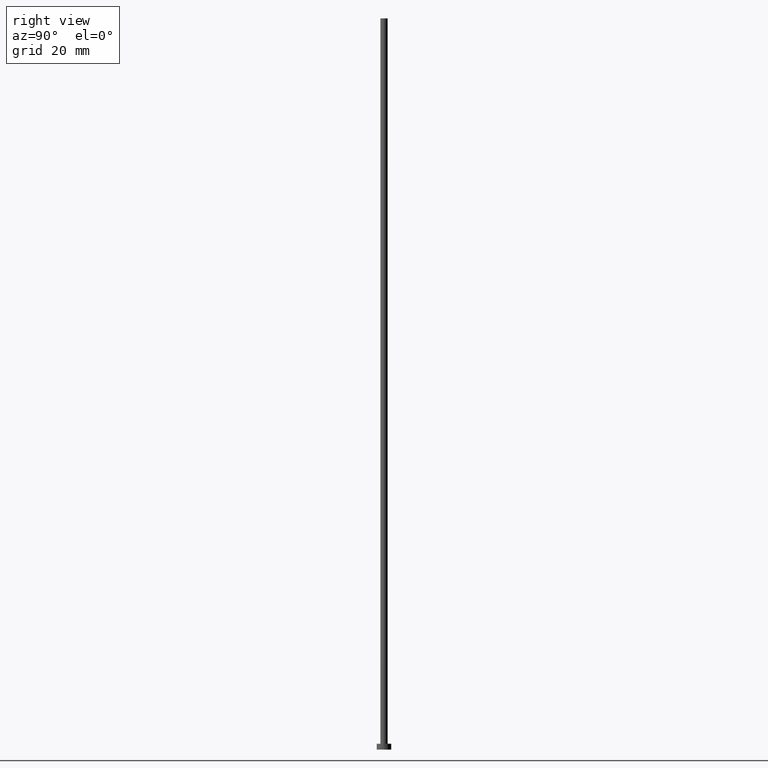
[diagram: clean part render]
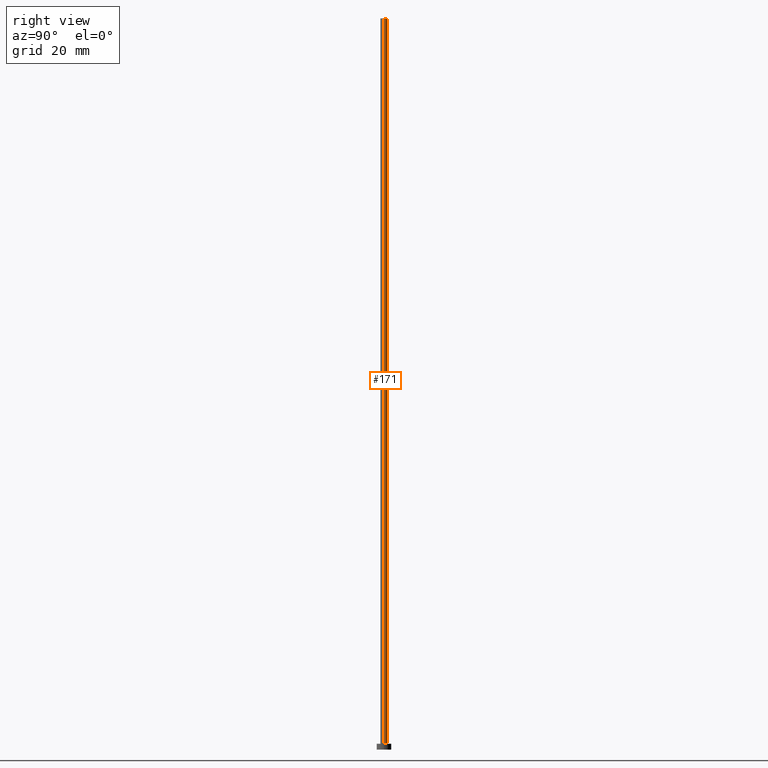
[diagram: same view with one face highlighted and labeled with its STEP entity id]
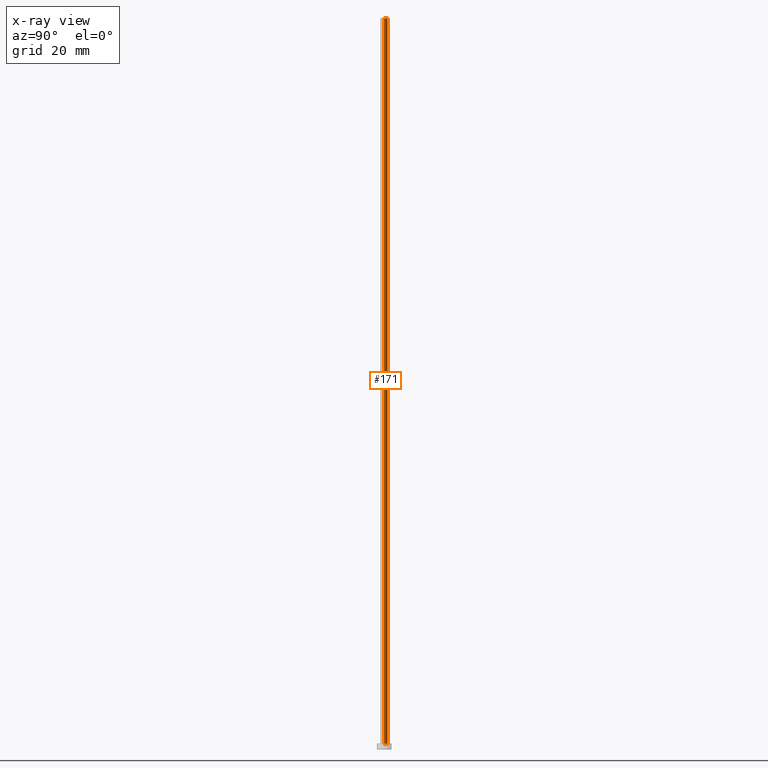
[diagram: x-ray of the same camera — body ghosted, the highlighted face saturated]
A machine part, right view. The second image highlights one B-rep face of the part: STEP entity #171.
The next image is the same camera in x-ray: the body ghosted, the highlighted face saturated — about 0% of this face is hidden behind the body in this view.
In plain terms, the highlighted cylindrical surface (edge-blend (fillet) strip) has radius 1.25 mm, axis along (-0, -0, -1).
Its self-contained STEP definition (entity closure, byte-faithful):
#5 = AXIS2_PLACEMENT_3D ( 'NONE', #182, #8, #162 ) ;
#8 = DIRECTION ( 'NONE',  ( 0.000000000000000000, 0.000000000000000000, 1.000000000000000000 ) ) ;
#9 = FACE_OUTER_BOUND ( 'NONE', #255, .T. ) ;
#16 = DIRECTION ( 'NONE',  ( -0.000000000000000000, -0.000000000000000000, -1.000000000000000000 ) ) ;
#18 = VERTEX_POINT ( 'NONE', #197 ) ;
#20 = AXIS2_PLACEMENT_3D ( 'NONE', #211, #72, #220 ) ;
#21 = CARTESIAN_POINT ( 'NONE',  ( 1.250000000000000000, 1.530808498934191571E-16, 250.0000000000000000 ) ) ;
#36 = VERTEX_POINT ( 'NONE', #21 ) ;
#40 = VERTEX_POINT ( 'NONE', #155 ) ;
#43 = ORIENTED_EDGE ( 'NONE', *, *, #51, .T. ) ;
#44 = LINE ( 'NONE', #65, #157 ) ;
#51 = EDGE_CURVE ( 'NONE', #36, #18, #113, .T. ) ;
#65 = CARTESIAN_POINT ( 'NONE',  ( -1.250000000000000000, 0.000000000000000000, 250.0000000000000000 ) ) ;
#72 = DIRECTION ( 'NONE',  ( -0.000000000000000000, -0.000000000000000000, -1.000000000000000000 ) ) ;
#76 = ORIENTED_EDGE ( 'NONE', *, *, #164, .F. ) ;
#77 = EDGE_CURVE ( 'NONE', #36, #40, #144, .T. ) ;
#82 = AXIS2_PLACEMENT_3D ( 'NONE', #247, #170, #248 ) ;
#103 = CARTESIAN_POINT ( 'NONE',  ( -1.250000000000000000, 0.000000000000000000, 2.000000000000000000 ) ) ;
#113 = LINE ( 'NONE', #236, #176 ) ;
#117 = ORIENTED_EDGE ( 'NONE', *, *, #77, .F. ) ;
#124 = ORIENTED_EDGE ( 'NONE', *, *, #224, .T. ) ;
#144 = CIRCLE ( 'NONE', #5, 1.250000000000000000 ) ;
#155 = CARTESIAN_POINT ( 'NONE',  ( -1.250000000000000000, 0.000000000000000000, 250.0000000000000000 ) ) ;
#157 = VECTOR ( 'NONE', #241, 1000.000000000000000 ) ;
#162 = DIRECTION ( 'NONE',  ( 1.000000000000000000, 0.000000000000000000, 0.000000000000000000 ) ) ;
#164 = EDGE_CURVE ( 'NONE', #40, #217, #44, .T. ) ;
#170 = DIRECTION ( 'NONE',  ( 0.000000000000000000, 0.000000000000000000, 1.000000000000000000 ) ) ;
#171 = ADVANCED_FACE ( 'NONE', ( #9 ), #244, .T. ) ;
#176 = VECTOR ( 'NONE', #16, 1000.000000000000000 ) ;
#182 = CARTESIAN_POINT ( 'NONE',  ( 0.000000000000000000, 0.000000000000000000, 250.0000000000000000 ) ) ;
#187 = CIRCLE ( 'NONE', #82, 1.250000000000000000 ) ;
#197 = CARTESIAN_POINT ( 'NONE',  ( 1.250000000000000000, 1.530808498934191571E-16, 2.000000000000000000 ) ) ;
#211 = CARTESIAN_POINT ( 'NONE',  ( 0.000000000000000000, 0.000000000000000000, 250.0000000000000000 ) ) ;
#217 = VERTEX_POINT ( 'NONE', #103 ) ;
#220 = DIRECTION ( 'NONE',  ( -1.000000000000000000, 0.000000000000000000, 0.000000000000000000 ) ) ;
#224 = EDGE_CURVE ( 'NONE', #18, #217, #187, .T. ) ;
#236 = CARTESIAN_POINT ( 'NONE',  ( 1.250000000000000000, 1.530808498934191571E-16, 250.0000000000000000 ) ) ;
#241 = DIRECTION ( 'NONE',  ( -0.000000000000000000, -0.000000000000000000, -1.000000000000000000 ) ) ;
#244 = CYLINDRICAL_SURFACE ( 'NONE', #20, 1.250000000000000000 ) ;
#247 = CARTESIAN_POINT ( 'NONE',  ( 0.000000000000000000, 0.000000000000000000, 2.000000000000000000 ) ) ;
#248 = DIRECTION ( 'NONE',  ( 1.000000000000000000, 0.000000000000000000, 0.000000000000000000 ) ) ;
#255 = EDGE_LOOP ( 'NONE', ( #117, #43, #124, #76 ) ) ;